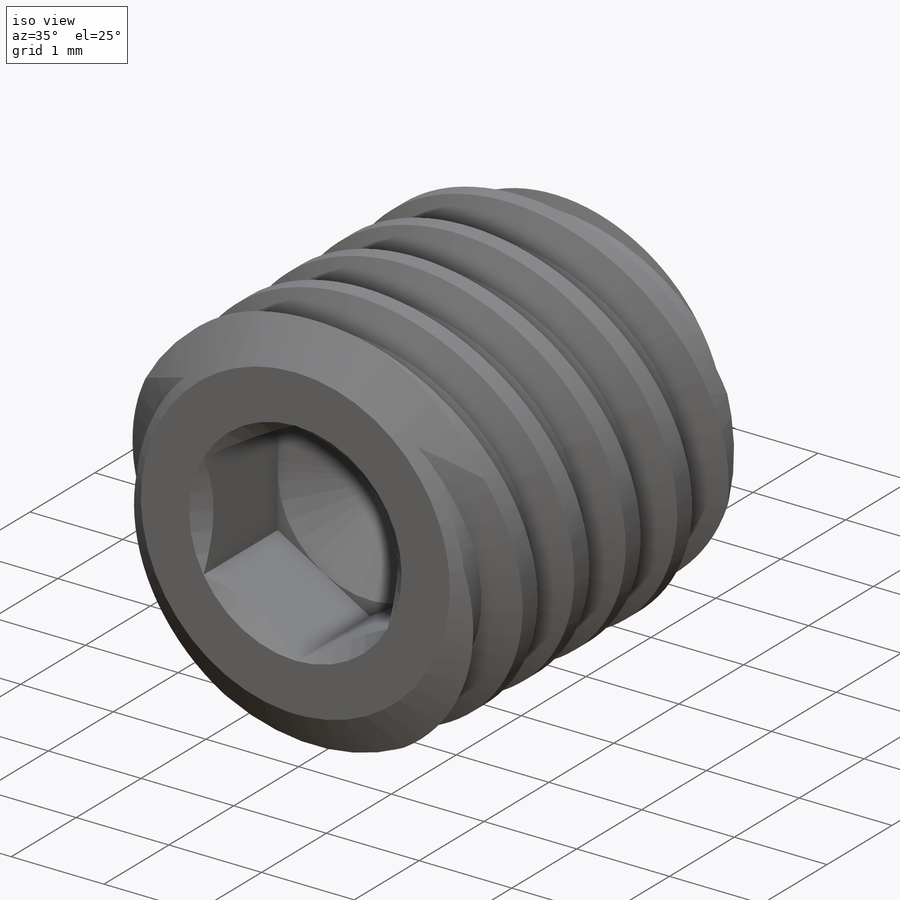
[diagram: iso view]
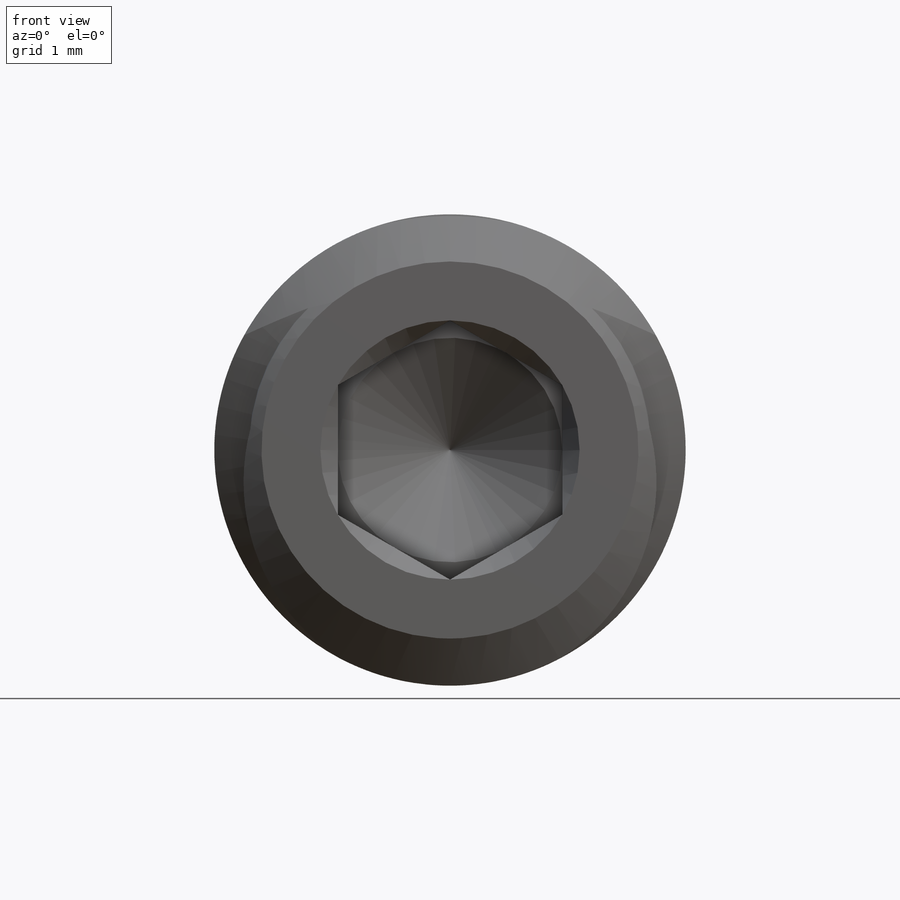
[diagram: front view]
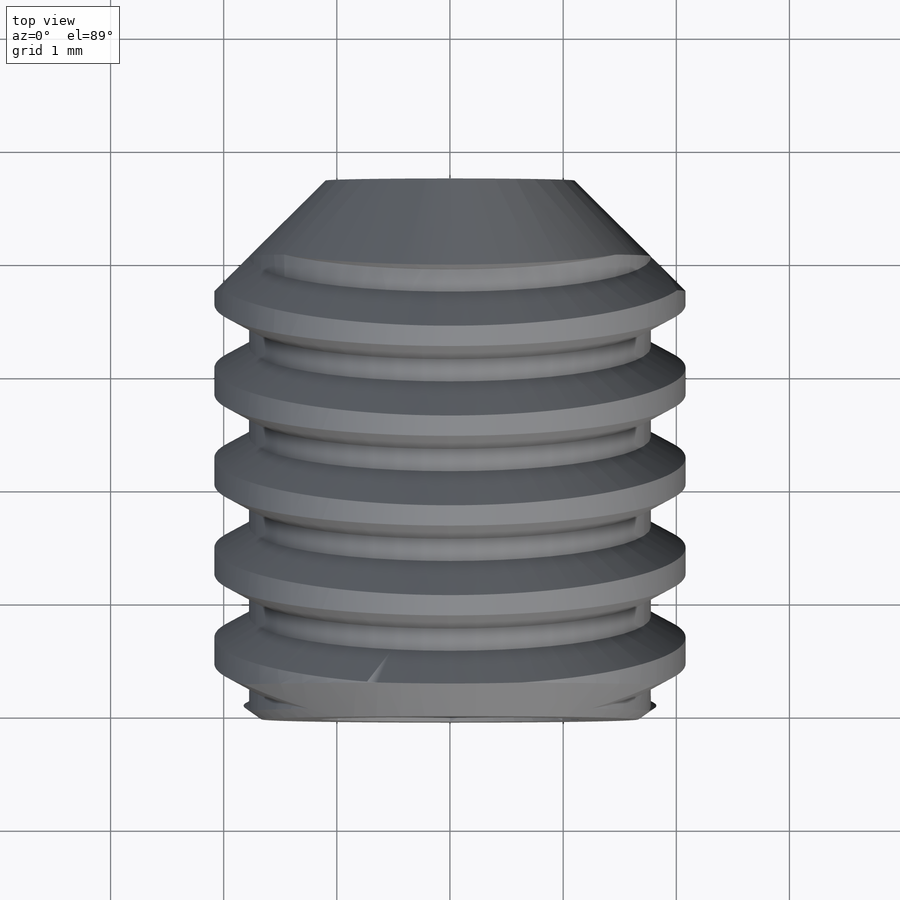
[diagram: top view]
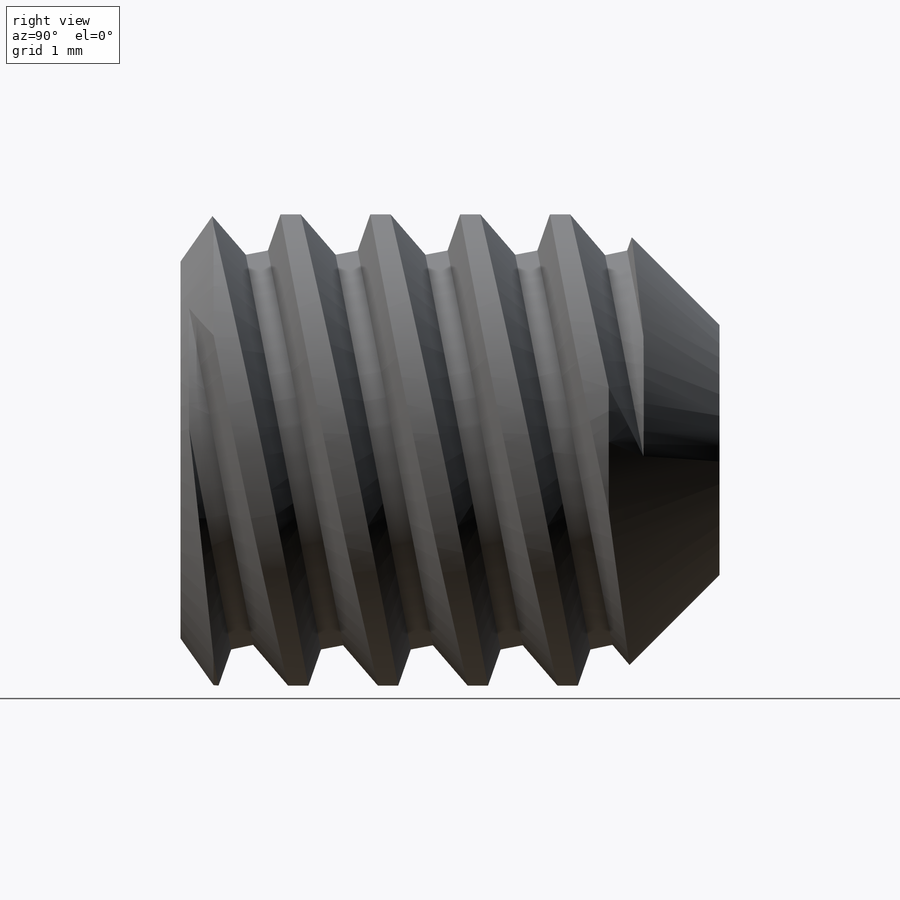
[diagram: right view]
SOLIDWORKS PART (.sldprt)
format: sldprt  version: not decoded by parser v0  size: 515,072 bytes
history: native  units: mm
features: sketch x5, cut_extrude x3, material x1, revolve x1, cut_revolve x1, pattern_linear x1 (+13 scaffold rows collapsed)
feature tree (25):
  scaffold x13  (default folders/planes/origin — collapsed)
  material  "Material <not specified>"
  sketch  "Sketch22"  dims[c1.Screw Dia=4.1656mm c1.Length=4.7625mm c1.D3=~0.472649mm c2.D3=35.0deg c2.Cup Point Dia=2.2098mm c2.D5=~1.43605mm c3.D5=118.0deg c3.D6=1.4986mm c4.D6=45.0deg c4.D7=~3.33248mm]
  revolve  "Revolve1"  Angle=360deg
  sketch  "Sketch6"  dims[c1.D1=~1.551984mm c2.D1=60.0deg c2.D2=0.3125mm c2.D3=~0.15625mm c2.Pitch=~1.953846mm c2.D4=0.508mm c2.D5=0.508mm c3.Pitch=1.25mm c3.D1=10.0mm c4.D1=~8.390381deg c5.D1=1.25mm c5.D2=~1.231583mm c6.D2=90.0deg c7.D2=~1.573443mm c8.D2=60.0deg c8.D3=0.313mm c8.D4=~0.15625mm c8.Pitch=~0.79375mm c9.D2=~1.674161mm c10.D2=60.0deg c11.D2=~0.198437mm c11.D3=~1.501533mm c12.D3=60.0deg c12.D1=~0.79375mm c12.D4=~0.15625mm c12.D5=~0.988019mm c12.D6=~0.15625mm c13.D5=~0.158146mm c13.D6=~0.158146mm c14.D5=~0.158146mm c14.D6=~0.158146mm c14.D4=~0.15625mm c15.D5=~0.15625mm c15.D6=~0.975586mm c16.D5=~0.988019mm c16.D4=~0.099219mm]
  cut_revolve  "Cut-Revolve8"  Angle=360deg
  pattern_linear  "LPattern1"  Count1=5 Count2=2 Spacing1=0.79375mm Spacing2=0.79375mm
  sketch  "Sketch23"  dims[Hex=~1.984375mm]
  cut_extrude  "Cut-Extrude10"  Depth=1.143mm hex Depth=1.143mm
  sketch  "Sketch24"
  cut_extrude  "Cut-Extrude11"  [1 undecoded]
  sketch  "Sketch26"
  cut_extrude  "Cut-Extrude12"  [1 undecoded]
decode coverage: 7 of 11 modeling features carry decoded parameters
note: ~ marks probable driven/reference dimensions
note: 2 parameter values undecoded
note: suppression state not decoded; provenance and decode notes live in map.json
